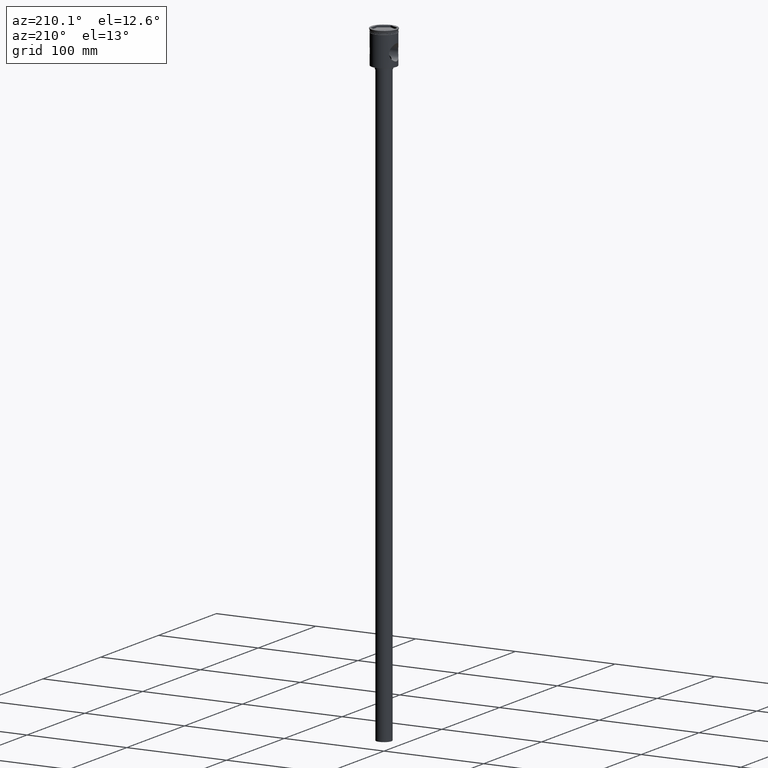
[diagram: clean part render]
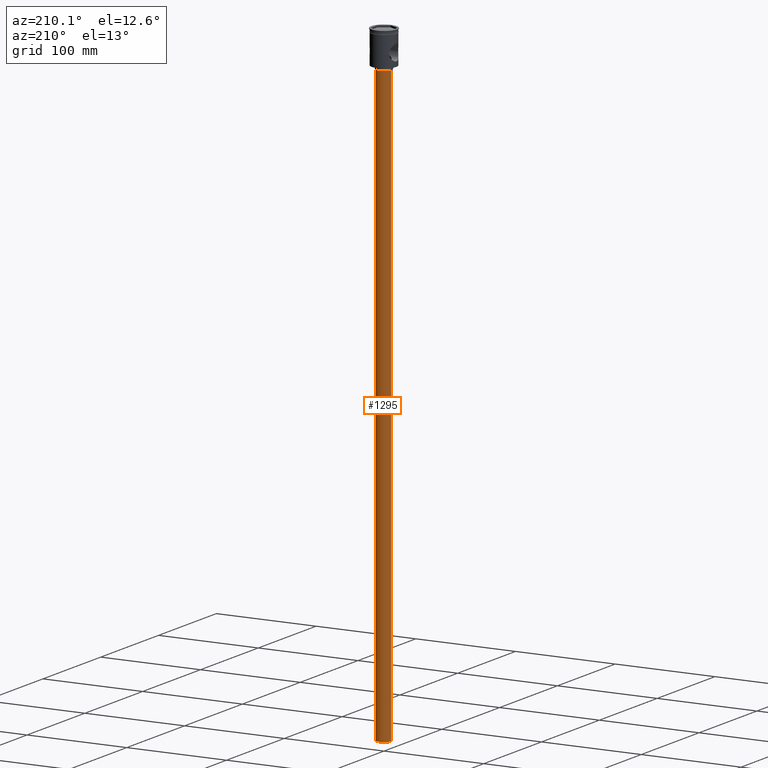
[diagram: same view with one face highlighted and labeled with its STEP entity id]
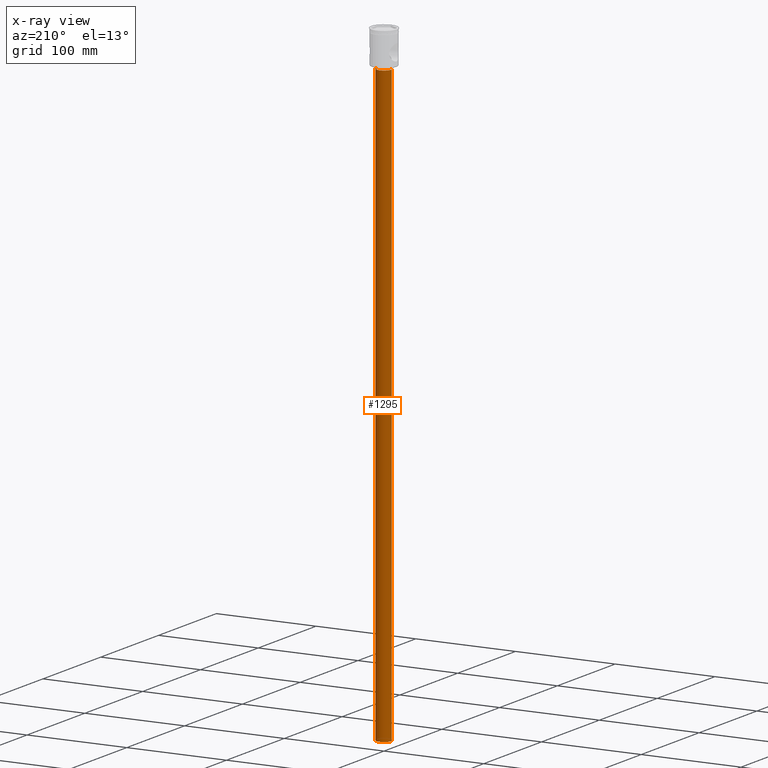
[diagram: x-ray of the same camera — body ghosted, the highlighted face saturated]
A machine part, auxiliary view. The second image highlights one B-rep face of the part: STEP entity #1295.
The next image is the same camera in x-ray: the body ghosted, the highlighted face saturated — about 0% of this face is hidden behind the body in this view.
In plain terms, the highlighted cylindrical surface (edge-blend (fillet) strip) has radius 7.5 mm, axis along (-0, -0, 1).
Its self-contained STEP definition (entity closure, byte-faithful):
#105 = CARTESIAN_POINT ( 'NONE',  ( 0.000000000000000000, 0.000000000000000000, -633.5000000000000000 ) ) ;
#157 = VERTEX_POINT ( 'NONE', #1429 ) ;
#182 = EDGE_CURVE ( 'NONE', #885, #211, #1475, .T. ) ;
#211 = VERTEX_POINT ( 'NONE', #1480 ) ;
#238 = CARTESIAN_POINT ( 'NONE',  ( 0.000000000000000000, 0.000000000000000000, -633.5000000000000000 ) ) ;
#345 = DIRECTION ( 'NONE',  ( -1.000000000000000000, 0.000000000000000000, 0.000000000000000000 ) ) ;
#379 = CARTESIAN_POINT ( 'NONE',  ( 7.500000000000000000, 0.000000000000000000, -633.5000000000000000 ) ) ;
#449 = CARTESIAN_POINT ( 'NONE',  ( 0.000000000000000000, 0.000000000000000000, -36.50000000000000711 ) ) ;
#460 = CIRCLE ( 'NONE', #533, 7.500000000000000000 ) ;
#463 = VECTOR ( 'NONE', #937, 1000.000000000000000 ) ;
#481 = DIRECTION ( 'NONE',  ( -1.000000000000000000, 0.000000000000000000, 0.000000000000000000 ) ) ;
#533 = AXIS2_PLACEMENT_3D ( 'NONE', #449, #1196, #345 ) ;
#539 = EDGE_LOOP ( 'NONE', ( #659, #1274, #859, #1103 ) ) ;
#573 = DIRECTION ( 'NONE',  ( 0.000000000000000000, 0.000000000000000000, -1.000000000000000000 ) ) ;
#580 = DIRECTION ( 'NONE',  ( -0.000000000000000000, -0.000000000000000000, 1.000000000000000000 ) ) ;
#588 = DIRECTION ( 'NONE',  ( 1.000000000000000000, 0.000000000000000000, 0.000000000000000000 ) ) ;
#627 = VERTEX_POINT ( 'NONE', #1510 ) ;
#631 = AXIS2_PLACEMENT_3D ( 'NONE', #238, #580, #588 ) ;
#659 = ORIENTED_EDGE ( 'NONE', *, *, #1342, .F. ) ;
#719 = CARTESIAN_POINT ( 'NONE',  ( -7.500000000000000000, 9.184850993605147944E-16, -633.5000000000000000 ) ) ;
#728 = CARTESIAN_POINT ( 'NONE',  ( 7.500000000000000000, 0.000000000000000000, -633.5000000000000000 ) ) ;
#792 = VECTOR ( 'NONE', #1217, 1000.000000000000000 ) ;
#827 = LINE ( 'NONE', #719, #792 ) ;
#840 = FACE_OUTER_BOUND ( 'NONE', #539, .T. ) ;
#859 = ORIENTED_EDGE ( 'NONE', *, *, #1306, .T. ) ;
#885 = VERTEX_POINT ( 'NONE', #379 ) ;
#937 = DIRECTION ( 'NONE',  ( -0.000000000000000000, -0.000000000000000000, 1.000000000000000000 ) ) ;
#1100 = CIRCLE ( 'NONE', #1471, 7.500000000000000000 ) ;
#1103 = ORIENTED_EDGE ( 'NONE', *, *, #182, .F. ) ;
#1196 = DIRECTION ( 'NONE',  ( 0.000000000000000000, 0.000000000000000000, -1.000000000000000000 ) ) ;
#1217 = DIRECTION ( 'NONE',  ( -0.000000000000000000, -0.000000000000000000, 1.000000000000000000 ) ) ;
#1274 = ORIENTED_EDGE ( 'NONE', *, *, #1383, .T. ) ;
#1295 = ADVANCED_FACE ( 'NONE', ( #840 ), #1547, .T. ) ;
#1306 = EDGE_CURVE ( 'NONE', #627, #211, #460, .T. ) ;
#1342 = EDGE_CURVE ( 'NONE', #157, #885, #1100, .T. ) ;
#1383 = EDGE_CURVE ( 'NONE', #157, #627, #827, .T. ) ;
#1429 = CARTESIAN_POINT ( 'NONE',  ( -7.500000000000000000, 9.184850993605147944E-16, -633.5000000000000000 ) ) ;
#1471 = AXIS2_PLACEMENT_3D ( 'NONE', #105, #573, #481 ) ;
#1475 = LINE ( 'NONE', #728, #463 ) ;
#1480 = CARTESIAN_POINT ( 'NONE',  ( 7.500000000000000000, 0.000000000000000000, -36.50000000000000711 ) ) ;
#1510 = CARTESIAN_POINT ( 'NONE',  ( -7.500000000000000000, 9.184850993605147944E-16, -36.50000000000000711 ) ) ;
#1547 = CYLINDRICAL_SURFACE ( 'NONE', #631, 7.500000000000000000 ) ;